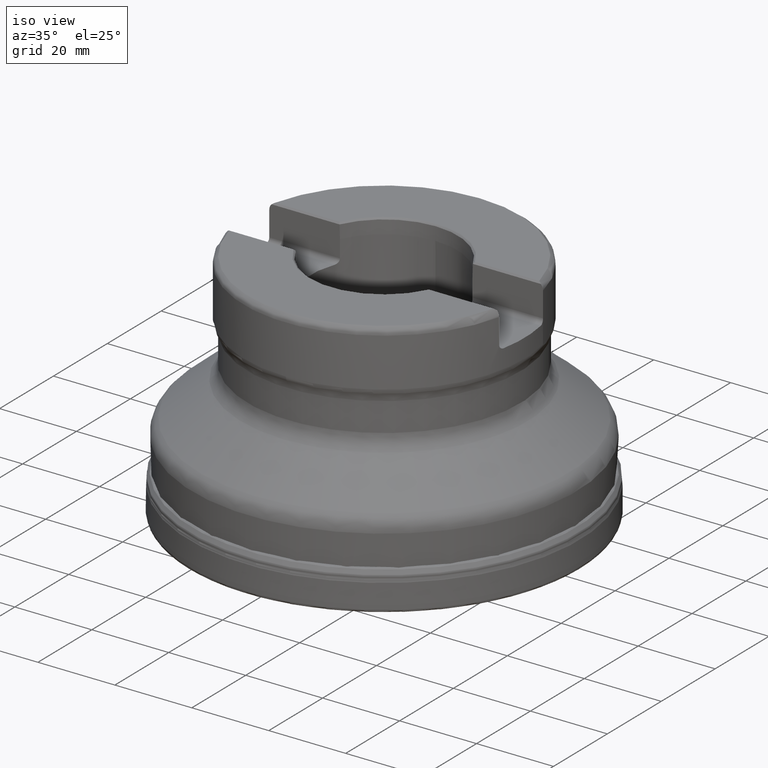
[diagram: clean part render]
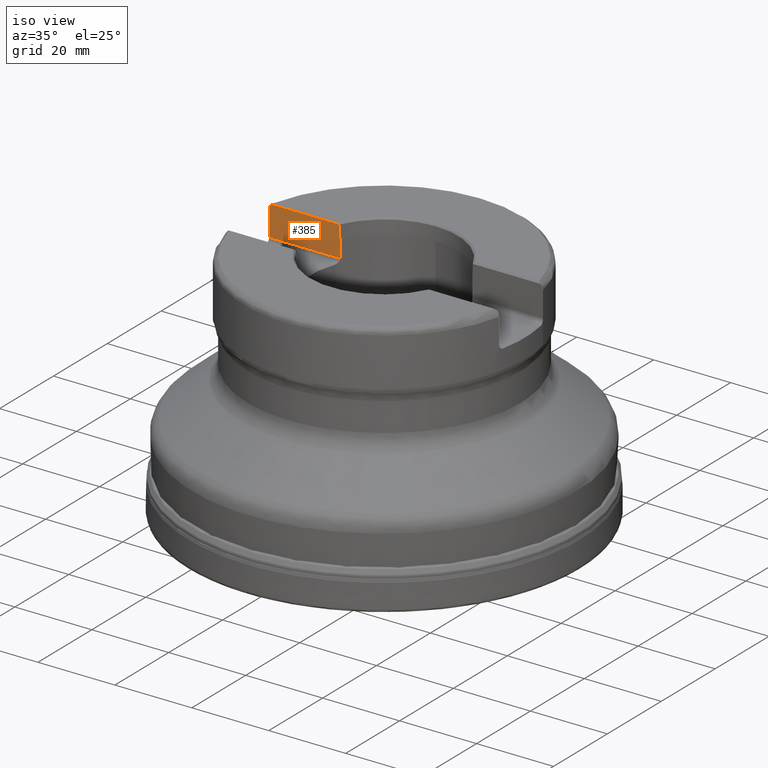
[diagram: same view with one face highlighted and labeled with its STEP entity id]
A machine part, iso view. The second image highlights one B-rep face of the part: STEP entity #385.
In plain terms, the highlighted planar face has unit normal (0, -1, 0).
Its self-contained STEP definition (entity closure, byte-faithful):
#294=PLANE('',#1253);
#308=LINE('',#1943,#335);
#315=LINE('',#1988,#342);
#322=LINE('',#2150,#349);
#327=LINE('',#2212,#354);
#335=VECTOR('',#1333,1.);
#342=VECTOR('',#1370,1.);
#349=VECTOR('',#1435,1.);
#354=VECTOR('',#1456,1.);
#385=ADVANCED_FACE('',(#466),#294,.T.);
#466=FACE_OUTER_BOUND('',#508,.T.);
#508=EDGE_LOOP('',(#766,#767,#768,#769,#770,#771));
#766=ORIENTED_EDGE('',*,*,#1080,.F.);
#767=ORIENTED_EDGE('',*,*,#1020,.T.);
#768=ORIENTED_EDGE('',*,*,#1011,.F.);
#769=ORIENTED_EDGE('',*,*,#1039,.T.);
#770=ORIENTED_EDGE('',*,*,#1070,.T.);
#771=ORIENTED_EDGE('',*,*,#1081,.F.);
#909=VERTEX_POINT('',#1854);
#914=VERTEX_POINT('',#1878);
#923=VERTEX_POINT('',#1944);
#934=VERTEX_POINT('',#1989);
#960=VERTEX_POINT('',#2149);
#967=VERTEX_POINT('',#2211);
#1011=EDGE_CURVE('',#914,#909,#1152,.T.);
#1020=EDGE_CURVE('',#923,#909,#308,.T.);
#1039=EDGE_CURVE('',#914,#934,#315,.T.);
#1070=EDGE_CURVE('',#934,#960,#322,.T.);
#1080=EDGE_CURVE('',#923,#967,#1169,.T.);
#1081=EDGE_CURVE('',#967,#960,#327,.T.);
#1152=B_SPLINE_CURVE_WITH_KNOTS('',3,(#1879,#1880,#1881,#1882,#1883,#1884,
#1885,#1886,#1887,#1888,#1889,#1890,#1891),.UNSPECIFIED.,.F.,.F.,(4,3,3,
3,4),(0.,0.0139370859742317,0.266296712068872,0.696012917476379,1.),
 .UNSPECIFIED.);
#1169=B_SPLINE_CURVE_WITH_KNOTS('',3,(#2204,#2205,#2206,#2207,#2208,#2209,
#2210),.UNSPECIFIED.,.F.,.F.,(4,3,4),(0.,0.437517291987116,1.),
 .UNSPECIFIED.);
#1253=AXIS2_PLACEMENT_3D('',#2213,#1457,#1458);
#1333=DIRECTION('',(-1.,-1.08268785724004E-15,1.26832049853221E-30));
#1370=DIRECTION('',(0.,-1.17145536458252E-15,-1.));
#1435=DIRECTION('',(1.,1.08268785724004E-15,-4.47319432837586E-16));
#1456=DIRECTION('',(-4.47319432837584E-16,-1.56003342320133E-15,-1.));
#1457=DIRECTION('',(1.08268785724004E-15,-1.,1.74206107020834E-15));
#1458=DIRECTION('',(-4.44089209850063E-16,-1.74166236988071E-15,-1.));
#1854=CARTESIAN_POINT('',(-34.9940296667002,8.14000000000006,59.925));
#1878=CARTESIAN_POINT('',(-35.5807588451961,8.14000000000006,58.525));
#1879=CARTESIAN_POINT('',(-35.5807588451961,8.14000000000006,58.525));
#1880=CARTESIAN_POINT('',(-35.5807588451961,8.14000000000006,58.5322927070157));
#1881=CARTESIAN_POINT('',(-35.5807179256537,8.14000000000006,58.5395855288197));
#1882=CARTESIAN_POINT('',(-35.5806360907967,8.14000000000006,58.5468777766675));
#1883=CARTESIAN_POINT('',(-35.5791604865255,8.14000000000006,58.6783678587984));
#1884=CARTESIAN_POINT('',(-35.5642321671612,8.14000000000006,58.8103711798568));
#1885=CARTESIAN_POINT('',(-35.5363465133119,8.14000000000006,58.938878803818));
#1886=CARTESIAN_POINT('',(-35.4893154857904,8.14000000000006,59.1556155399165));
#1887=CARTESIAN_POINT('',(-35.4036875072836,8.14000000000006,59.3670865380295));
#1888=CARTESIAN_POINT('',(-35.2871989436816,8.14000000000006,59.5558115890278));
#1889=CARTESIAN_POINT('',(-35.2046603072577,8.14000000000006,59.6895338007777));
#1890=CARTESIAN_POINT('',(-35.1054992439392,8.14000000000006,59.8142354308989));
#1891=CARTESIAN_POINT('',(-34.9940296667002,8.14000000000006,59.925));
#1943=CARTESIAN_POINT('',(-33.525966056178,8.14000000000006,59.925));
#1944=CARTESIAN_POINT('',(-17.321747919908,8.14000000000008,59.925));
#1988=CARTESIAN_POINT('',(-35.5807588451961,8.13999999999995,-1.41803771114958E-14));
#1989=CARTESIAN_POINT('',(-35.5807588451961,8.14000000000004,51.995));
#2149=CARTESIAN_POINT('',(-17.2233243016556,8.14000000000006,51.995));
#2150=CARTESIAN_POINT('',(-67.,8.14000000000001,51.995));
#2204=CARTESIAN_POINT('',(-17.321747919908,8.14000000000008,59.925));
#2205=CARTESIAN_POINT('',(-17.3074013132064,8.14000000000008,59.4291468546372));
#2206=CARTESIAN_POINT('',(-17.2930514851347,8.14000000000007,58.9332938024682));
#2207=CARTESIAN_POINT('',(-17.2786984115605,8.14000000000007,58.4374408442548));
#2208=CARTESIAN_POINT('',(-17.260245756462,8.14000000000007,57.7999604070386));
#2209=CARTESIAN_POINT('',(-17.241787737125,8.14000000000007,57.1624801250739));
#2210=CARTESIAN_POINT('',(-17.2233243016556,8.14000000000007,56.525));
#2211=CARTESIAN_POINT('',(-17.2233243016556,8.14000000000007,56.525));
#2212=CARTESIAN_POINT('',(-17.2233243016556,8.13999999999997,-6.47604945330146E-15));
#2213=CARTESIAN_POINT('',(-67.,8.14000000000002,60.325));